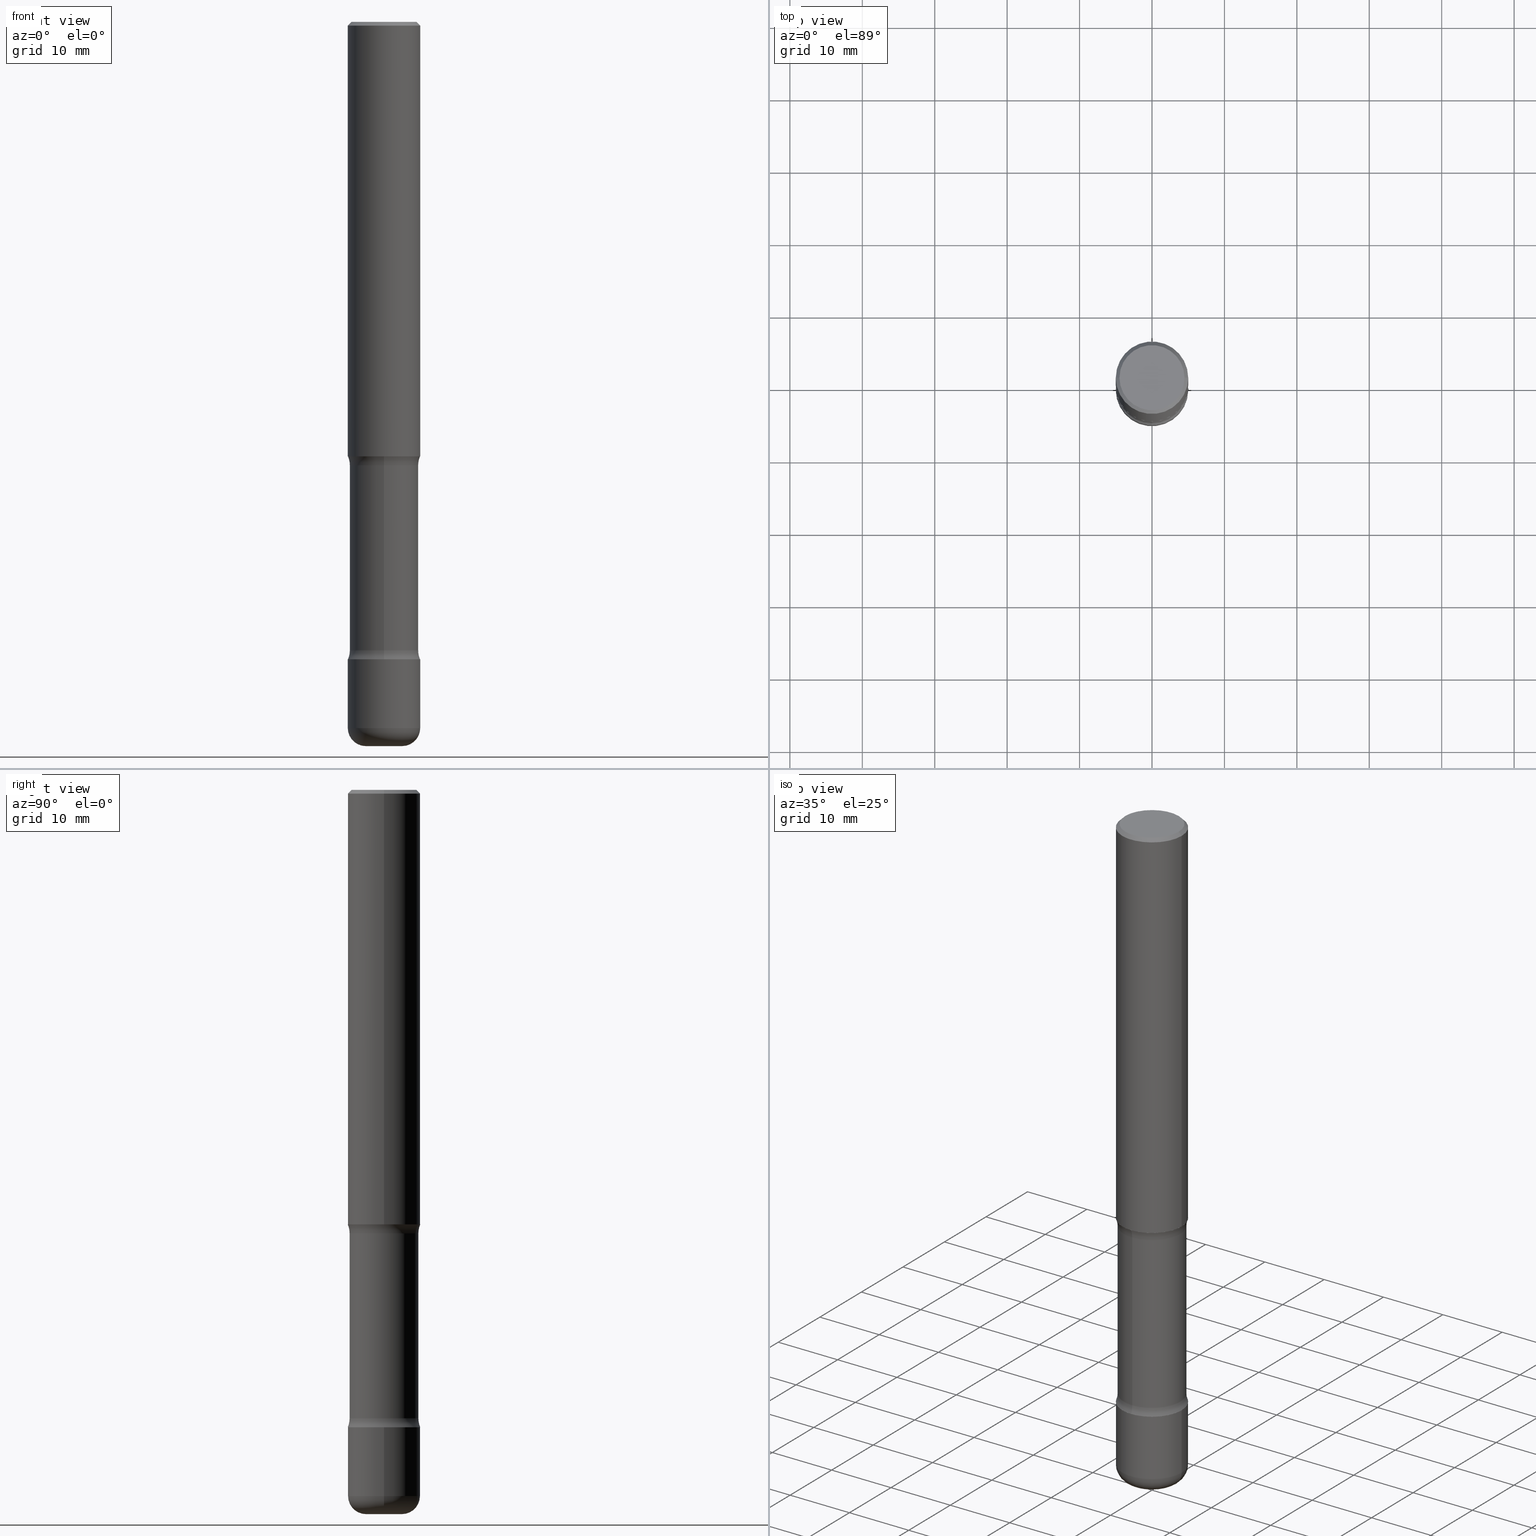
[diagram: canonical four-view strip — front | top / right | iso, engineering-drawing reading convention]
A machine part, canonical four-view strip (front | top / right | iso — engineering-drawing reading convention). The complete STEP part file that produces these views, byte-faithful:
ISO-10303-21;
HEADER;
FILE_DESCRIPTION (( 'STEP AP203' ),
    '1' );
FILE_NAME ('45192.STEP',
    '2024-03-02T05:10:40',
    ( '' ),
    ( '' ),
    'SwSTEP 2.0',
    'SolidWorks 2023',
    '' );
FILE_SCHEMA (( 'CONFIG_CONTROL_DESIGN' ));
ENDSEC;

DATA;
#1 = APPROVAL_PERSON_ORGANIZATION ( #38, #67, #330 ) ;
#2 = ORIENTED_EDGE ( 'NONE', *, *, #7, .F. ) ;
#3 = APPLICATION_CONTEXT ( 'configuration controlled 3d designs of mechanical parts and assemblies' ) ;
#4 = ORIENTED_EDGE ( 'NONE', *, *, #212, .F. ) ;
#5 = EDGE_CURVE ( 'NONE', #428, #130, #383, .T. ) ;
#6 = CARTESIAN_POINT ( 'NONE',  ( 1.305814020727415620E-15, 0.1869999999999880924, -3.415963825191532521 ) ) ;
#7 = EDGE_CURVE ( 'NONE', #387, #225, #76, .T. ) ;
#8 = ORIENTED_EDGE ( 'NONE', *, *, #312, .T. ) ;
#9 = DIRECTION ( 'NONE',  ( 2.620889282446383185E-29, -3.240269232523581650E-15, -1.000000000000000000 ) ) ;
#10 = AXIS2_PLACEMENT_3D ( 'NONE', #240, #72, #417 ) ;
#11 = CC_DESIGN_APPROVAL ( #115, ( #23 ) ) ;
#12 = FACE_OUTER_BOUND ( 'NONE', #211, .T. ) ;
#13 = ORIENTED_EDGE ( 'NONE', *, *, #236, .F. ) ;
#14 = DIRECTION ( 'NONE',  ( 6.982962677686265133E-15, 1.000000000000000000, -2.775563112689110384E-15 ) ) ;
#15 = CARTESIAN_POINT ( 'NONE',  ( 1.305814020727390377E-15, 0.1869999999999915341, -2.410836174808471455 ) ) ;
#16 = EDGE_CURVE ( 'NONE', #256, #487, #436, .T. ) ;
#17 = ORIENTED_EDGE ( 'NONE', *, *, #312, .F. ) ;
#18 = EDGE_CURVE ( 'NONE', #477, #123, #303, .T. ) ;
#19 = DIRECTION ( 'NONE',  ( 1.000000000000000000, -6.982962677686266711E-15, 4.883557194083112340E-29 ) ) ;
#20 = CARTESIAN_POINT ( 'NONE',  ( 1.374596203102626805E-15, 0.1968499999999879790, -3.464600000000001678 ) ) ;
#21 = DIRECTION ( 'NONE',  ( 2.620889282446383185E-29, -3.240269232523581650E-15, -1.000000000000000000 ) ) ;
#22 = CARTESIAN_POINT ( 'NONE',  ( -1.316701078222246809E-15, -0.1870000000000088813, -2.410836174808470567 ) ) ;
#23 = PRODUCT_DEFINITION_FORMATION_WITH_SPECIFIED_SOURCE ( 'ANY', '', #317, .NOT_KNOWN. ) ;
#24 = DIRECTION ( 'NONE',  ( -1.000000000000000000, 6.982962677686265922E-15, -4.883557194083112340E-29 ) ) ;
#25 = DIRECTION ( 'NONE',  ( 6.982962677686265922E-15, 1.000000000000000000, -3.240269232523581650E-15 ) ) ;
#26 = CARTESIAN_POINT ( 'NONE',  ( 8.472571225909027026E-29, -1.209658624655596689E-14, -3.464600000000001234 ) ) ;
#27 = DIRECTION ( 'NONE',  ( 6.982962677686266711E-15, 1.000000000000000000, -2.921762560068729017E-15 ) ) ;
#28 = DIRECTION ( 'NONE',  ( -2.445468806185136597E-29, 3.491481338843145583E-15, 1.000000000000000000 ) ) ;
#29 = PERSON_AND_ORGANIZATION ( #458, #42 ) ;
#30 = AXIS2_PLACEMENT_3D ( 'NONE', #200, #147, #420 ) ;
#31 = APPROVAL_PERSON_ORGANIZATION ( #255, #400, #549 ) ;
#32 = PERSON_AND_ORGANIZATION_ROLE ( 'creator' ) ;
#33 = EDGE_LOOP ( 'NONE', ( #310, #305, #434, #50 ) ) ;
#34 = EDGE_CURVE ( 'NONE', #428, #235, #112, .T. ) ;
#35 = MANIFOLD_SOLID_BREP ( 'Body-Move/Copy2[2]', #174 ) ;
#36 = APPLICATION_CONTEXT ( 'configuration controlled 3d designs of mechanical parts and assemblies' ) ;
#37 = ORIENTED_EDGE ( 'NONE', *, *, #517, .F. ) ;
#38 = PERSON_AND_ORGANIZATION ( #458, #42 ) ;
#39 = CARTESIAN_POINT ( 'NONE',  ( 8.353632977562746871E-29, -1.192677394981948142E-14, -3.415963825191531633 ) ) ;
#40 = EDGE_LOOP ( 'NONE', ( #518, #357 ) ) ;
#41 = AXIS2_PLACEMENT_3D ( 'NONE', #153, #495, #449 ) ;
#42 = ORGANIZATION ( 'UNSPECIFIED', 'UNSPECIFIED', '' ) ;
#43 = ADVANCED_BREP_SHAPE_REPRESENTATION ( '45192', ( #46, #35, #409, #216 ), #437 ) ;
#44 = VERTEX_POINT ( 'NONE', #527 ) ;
#45 = ORIENTED_EDGE ( 'NONE', *, *, #85, .F. ) ;
#46 = MANIFOLD_SOLID_BREP ( 'Body-Move/Copy2[1]', #352 ) ;
#47 = CARTESIAN_POINT ( 'NONE',  ( 0.1968499999999999139, -1.420318657638188530E-15, -0.02000000000000006981 ) ) ;
#48 = AXIS2_PLACEMENT_3D ( 'NONE', #237, #116, #245 ) ;
#49 = TOROIDAL_SURFACE ( 'NONE', #405, 0.09845000000000023177, 0.09840000000000009850 ) ;
#50 = ORIENTED_EDGE ( 'NONE', *, *, #304, .F. ) ;
#51 = ADVANCED_FACE ( 'NONE', ( #201 ), #422, .T. ) ;
#52 = CYLINDRICAL_SURFACE ( 'NONE', #232, 0.1968500000000000250 ) ;
#53 = ORIENTED_EDGE ( 'NONE', *, *, #158, .T. ) ;
#54 = DIRECTION ( 'NONE',  ( -2.445468806185136597E-29, 3.491481338843145583E-15, 1.000000000000000000 ) ) ;
#55 = VERTEX_POINT ( 'NONE', #459 ) ;
#56 = DIRECTION ( 'NONE',  ( -2.445468806185136597E-29, 3.491481338843145583E-15, 1.000000000000000000 ) ) ;
#57 = AXIS2_PLACEMENT_3D ( 'NONE', #146, #486, #65 ) ;
#58 = ADVANCED_FACE ( 'NONE', ( #143 ), #247, .F. ) ;
#59 = AXIS2_PLACEMENT_3D ( 'NONE', #285, #456, #14 ) ;
#60 = FACE_OUTER_BOUND ( 'NONE', #350, .T. ) ;
#61 = VERTEX_POINT ( 'NONE', #66 ) ;
#62 = DIRECTION ( 'NONE',  ( 7.105427357601001859E-15, 1.000000000000000000, -3.491481338843145583E-15 ) ) ;
#63 = DIRECTION ( 'NONE',  ( 1.000000000000000000, -6.982962677686266711E-15, 4.876176775795935793E-29 ) ) ;
#64 = CARTESIAN_POINT ( 'NONE',  ( 9.387176559422264284E-29, -1.340240026728329889E-14, -3.838600000000000012 ) ) ;
#65 = DIRECTION ( 'NONE',  ( -1.000000000000000000, 6.982962677686265922E-15, -4.876176775795935793E-29 ) ) ;
#66 = CARTESIAN_POINT ( 'NONE',  ( 0.1968500000000002470, -1.477699647038584208E-14, -3.838600000000000012 ) ) ;
#67 = APPROVAL ( #427, 'UNSPECIFIED' ) ;
#68 = CLOSED_SHELL ( 'NONE', ( #540, #378, #492, #452, #233, #491, #528, #97 ) ) ;
#69 = CARTESIAN_POINT ( 'NONE',  ( 0.1968500000000000250, -1.374596203102541608E-15, 9.598753983154300858E-30 ) ) ;
#70 = CIRCLE ( 'NONE', #166, 0.1250000000000000000 ) ;
#71 = DIRECTION ( 'NONE',  ( -6.982962677686265133E-15, -1.000000000000000000, 0.000000000000000000 ) ) ;
#72 = DIRECTION ( 'NONE',  ( -2.445468806185136597E-29, 3.491481338843145583E-15, 1.000000000000000000 ) ) ;
#73 = MECHANICAL_CONTEXT ( 'NONE', #3, 'mechanical' ) ;
#74 = EDGE_CURVE ( 'NONE', #61, #252, #531, .T. ) ;
#75 = DATE_TIME_ROLE ( 'classification_date' ) ;
#76 = CIRCLE ( 'NONE', #101, 0.1968500000000001082 ) ;
#77 = TOROIDAL_SURFACE ( 'NONE', #474, 0.3120000000000002771, 0.1250000000000000278 ) ;
#78 = PERSON_AND_ORGANIZATION_ROLE ( 'classification_officer' ) ;
#79 = DATE_AND_TIME ( #118, #114 ) ;
#80 = ORIENTED_EDGE ( 'NONE', *, *, #159, .F. ) ;
#81 = APPROVAL_DATE_TIME ( #209, #115 ) ;
#82 = ORIENTED_EDGE ( 'NONE', *, *, #548, .F. ) ;
#83 = VECTOR ( 'NONE', #363, 39.37007874015748143 ) ;
#84 = TOROIDAL_SURFACE ( 'NONE', #482, 0.3120000000000002771, 0.1250000000000000278 ) ;
#85 = EDGE_CURVE ( 'NONE', #168, #220, #184, .T. ) ;
#86 = CC_DESIGN_PERSON_AND_ORGANIZATION_ASSIGNMENT ( #248, #467, ( #317 ) ) ;
#87 = ORIENTED_EDGE ( 'NONE', *, *, #548, .T. ) ;
#88 = LINE ( 'NONE', #293, #250 ) ;
#89 = ORIENTED_EDGE ( 'NONE', *, *, #149, .F. ) ;
#90 = CARTESIAN_POINT ( 'NONE',  ( 5.704860736508115224E-29, -8.690574314718193977E-15, -2.410836174808470567 ) ) ;
#91 = AXIS2_PLACEMENT_3D ( 'NONE', #152, #142, #314 ) ;
#92 = ORIENTED_EDGE ( 'NONE', *, *, #132, .T. ) ;
#93 = DIRECTION ( 'NONE',  ( -2.445468806185136597E-29, 3.491481338843145583E-15, 1.000000000000000000 ) ) ;
#94 = DIRECTION ( 'NONE',  ( 6.982962677686266711E-15, 1.000000000000000000, -2.921762560068729806E-15 ) ) ;
#95 = DIRECTION ( 'NONE',  ( -2.445468806185136877E-29, 3.491481338843145188E-15, 1.000000000000000000 ) ) ;
#96 = ORIENTED_EDGE ( 'NONE', *, *, #355, .F. ) ;
#97 = ADVANCED_FACE ( 'NONE', ( #282 ), #151, .T. ) ;
#98 = DIRECTION ( 'NONE',  ( -2.445468806185136597E-29, 3.491481338843145583E-15, 1.000000000000000000 ) ) ;
#99 = ORIENTED_EDGE ( 'NONE', *, *, #501, .T. ) ;
#100 = LINE ( 'NONE', #362, #328 ) ;
#101 = AXIS2_PLACEMENT_3D ( 'NONE', #272, #141, #444 ) ;
#102 = AXIS2_PLACEMENT_3D ( 'NONE', #277, #418, #319 ) ;
#103 = DIRECTION ( 'NONE',  ( -1.000000000000000000, 6.982962677686265922E-15, -4.876176775795935793E-29 ) ) ;
#104 = DIRECTION ( 'NONE',  ( -1.000000000000000000, 6.982962677686265922E-15, -4.883557194083112340E-29 ) ) ;
#105 = CYLINDRICAL_SURFACE ( 'NONE', #155, 0.1968500000000000250 ) ;
#106 = CC_DESIGN_PERSON_AND_ORGANIZATION_ASSIGNMENT ( #376, #384, ( #23 ) ) ;
#107 = CARTESIAN_POINT ( 'NONE',  ( 8.472571225909027026E-29, -1.209658624655596689E-14, -3.464600000000001234 ) ) ;
#108 = CARTESIAN_POINT ( 'NONE',  ( -0.09845000000000021789, -1.252506479980459281E-14, -3.937000000000000277 ) ) ;
#109 = DIRECTION ( 'NONE',  ( 1.000000000000000000, -6.982962677686269866E-15, 0.000000000000000000 ) ) ;
#110 = DIRECTION ( 'NONE',  ( 2.620889282446383185E-29, -3.240269232523581650E-15, -1.000000000000000000 ) ) ;
#111 = CARTESIAN_POINT ( 'NONE',  ( 9.710679322936699330E-29, -1.362728943200010467E-14, -3.937000000000001165 ) ) ;
#112 = CIRCLE ( 'NONE', #120, 0.1250000000000000278 ) ;
#113 = CARTESIAN_POINT ( 'NONE',  ( 2.178684355438173716E-15, 0.3119999999999915619, -2.410836174808471899 ) ) ;
#114 = LOCAL_TIME ( 0, 10, 40.00000000000000000, #460 ) ;
#115 = APPROVAL ( #381, 'UNSPECIFIED' ) ;
#116 = DIRECTION ( 'NONE',  ( -2.445468806185136597E-29, 3.491481338843145583E-15, 1.000000000000000000 ) ) ;
#117 = DIRECTION ( 'NONE',  ( 2.620889282446383185E-29, -3.240269232523581650E-15, -1.000000000000000000 ) ) ;
#118 = CALENDAR_DATE ( 2024, 2, 3 ) ;
#119 = ORIENTED_EDGE ( 'NONE', *, *, #194, .T. ) ;
#120 = AXIS2_PLACEMENT_3D ( 'NONE', #113, #24, #360 ) ;
#121 = ORIENTED_EDGE ( 'NONE', *, *, #238, .F. ) ;
#122 = CARTESIAN_POINT ( 'NONE',  ( 8.345101196614320923E-29, -1.193899194573644426E-14, -3.415963825191531633 ) ) ;
#123 = VERTEX_POINT ( 'NONE', #284 ) ;
#124 = DIRECTION ( 'NONE',  ( 6.982962677686266711E-15, 1.000000000000000000, -2.921762560068729806E-15 ) ) ;
#125 = ORIENTED_EDGE ( 'NONE', *, *, #132, .F. ) ;
#126 = COORDINATED_UNIVERSAL_TIME_OFFSET ( 5, 0, .BEHIND. ) ;
#127 = ORIENTED_EDGE ( 'NONE', *, *, #170, .F. ) ;
#128 = AXIS2_PLACEMENT_3D ( 'NONE', #186, #110, #94 ) ;
#129 = LOCAL_TIME ( 0, 10, 40.00000000000000000, #205 ) ;
#130 = VERTEX_POINT ( 'NONE', #22 ) ;
#131 = CARTESIAN_POINT ( 'NONE',  ( 0.1968499999999999139, -1.420318657638188530E-15, -0.02000000000000006981 ) ) ;
#132 = EDGE_CURVE ( 'NONE', #387, #487, #455, .T. ) ;
#133 = ORIENTED_EDGE ( 'NONE', *, *, #158, .F. ) ;
#134 = CARTESIAN_POINT ( 'NONE',  ( 0.1968500000000001082, -9.622173421717824390E-15, -2.362200000000000966 ) ) ;
#135 = ORIENTED_EDGE ( 'NONE', *, *, #313, .T. ) ;
#136 = FACE_OUTER_BOUND ( 'NONE', #215, .T. ) ;
#137 = AXIS2_PLACEMENT_3D ( 'NONE', #483, #397, #520 ) ;
#138 = EDGE_CURVE ( 'NONE', #187, #551, #144, .T. ) ;
#139 = ORIENTED_EDGE ( 'NONE', *, *, #511, .F. ) ;
#140 = PLANE ( 'NONE',  #289 ) ;
#141 = DIRECTION ( 'NONE',  ( -2.445468806185136597E-29, 3.491481338843145583E-15, 1.000000000000000000 ) ) ;
#142 = DIRECTION ( 'NONE',  ( 2.620889282446383185E-29, -3.240269232523582044E-15, -1.000000000000000000 ) ) ;
#143 = FACE_OUTER_BOUND ( 'NONE', #173, .T. ) ;
#144 = CIRCLE ( 'NONE', #391, 0.1968500000000001360 ) ;
#145 = AXIS2_PLACEMENT_3D ( 'NONE', #264, #230, #443 ) ;
#146 = CARTESIAN_POINT ( 'NONE',  ( 4.014228812657202815E-28, 2.995250643441362579E-14, -3.937000000000000721 ) ) ;
#147 = DIRECTION ( 'NONE',  ( -2.445468806185136597E-29, 3.491481338843145583E-15, 1.000000000000000000 ) ) ;
#148 = DIRECTION ( 'NONE',  ( -2.445468806185136877E-29, 3.491481338843145188E-15, 1.000000000000000000 ) ) ;
#149 = EDGE_CURVE ( 'NONE', #187, #475, #288, .T. ) ;
#150 = DIRECTION ( 'NONE',  ( -6.982962677686266711E-15, -1.000000000000000000, 3.491481338843145583E-15 ) ) ;
#151 = CYLINDRICAL_SURFACE ( 'NONE', #541, 0.1870000000000001106 ) ;
#152 = CARTESIAN_POINT ( 'NONE',  ( 5.776686413970530874E-29, -8.247577218615281204E-15, -2.362200000000000966 ) ) ;
#153 = CARTESIAN_POINT ( 'NONE',  ( 5.776686413970530874E-29, -8.247577218615281204E-15, -2.362200000000000966 ) ) ;
#154 = FACE_OUTER_BOUND ( 'NONE', #308, .T. ) ;
#155 = AXIS2_PLACEMENT_3D ( 'NONE', #429, #344, #244 ) ;
#156 = CARTESIAN_POINT ( 'NONE',  ( 4.890937612370289799E-31, -6.982962677686315028E-17, -0.02000000000000006981 ) ) ;
#157 = DIRECTION ( 'NONE',  ( 6.860497997771529985E-15, 1.000000000000000000, 0.000000000000000000 ) ) ;
#158 = EDGE_CURVE ( 'NONE', #55, #558, #203, .T. ) ;
#159 = EDGE_CURVE ( 'NONE', #252, #61, #431, .T. ) ;
#160 = PERSON_AND_ORGANIZATION_ROLE ( 'design_supplier' ) ;
#161 = CARTESIAN_POINT ( 'NONE',  ( 0.000000000000000000, 0.000000000000000000, 0.000000000000000000 ) ) ;
#162 = EDGE_LOOP ( 'NONE', ( #380, #298, #396, #466 ) ) ;
#163 = APPLICATION_PROTOCOL_DEFINITION ( 'international standard', 'config_control_design', 1994, #36 ) ;
#164 = CIRCLE ( 'NONE', #297, 0.09840000000000008462 ) ;
#165 = VERTEX_POINT ( 'NONE', #451 ) ;
#166 = AXIS2_PLACEMENT_3D ( 'NONE', #470, #349, #395 ) ;
#167 = DATE_AND_TIME ( #251, #178 ) ;
#168 = VERTEX_POINT ( 'NONE', #108 ) ;
#169 = DIRECTION ( 'NONE',  ( 0.000000000000000000, 0.000000000000000000, 1.000000000000000000 ) ) ;
#170 = EDGE_CURVE ( 'NONE', #551, #187, #454, .T. ) ;
#171 = ORIENTED_EDGE ( 'NONE', *, *, #138, .F. ) ;
#172 = CARTESIAN_POINT ( 'NONE',  ( -0.1768499999999998407, 1.269851762937246464E-15, 4.268512490091652920E-18 ) ) ;
#173 = EDGE_LOOP ( 'NONE', ( #2, #524 ) ) ;
#174 = CLOSED_SHELL ( 'NONE', ( #332, #213, #512, #302, #58, #218 ) ) ;
#175 = DIRECTION ( 'NONE',  ( -6.982962677686265922E-15, -1.000000000000000000, 3.240269232523582044E-15 ) ) ;
#176 = CC_DESIGN_SECURITY_CLASSIFICATION ( #447, ( #23 ) ) ;
#177 = EDGE_CURVE ( 'NONE', #123, #487, #497, .T. ) ;
#178 = LOCAL_TIME ( 0, 10, 40.00000000000000000, #554 ) ;
#179 = DIRECTION ( 'NONE',  ( 0.7071067811865472397, -7.319954787623254468E-15, -0.7071067811865477948 ) ) ;
#180 = FACE_OUTER_BOUND ( 'NONE', #382, .T. ) ;
#181 = EDGE_LOOP ( 'NONE', ( #559, #221, #17, #121 ) ) ;
#182 = ORIENTED_EDGE ( 'NONE', *, *, #16, .F. ) ;
#183 = CYLINDRICAL_SURFACE ( 'NONE', #145, 0.1968500000000001915 ) ;
#184 = CIRCLE ( 'NONE', #10, 0.09845000000000021789 ) ;
#185 = AXIS2_PLACEMENT_3D ( 'NONE', #122, #507, #124 ) ;
#186 = CARTESIAN_POINT ( 'NONE',  ( 8.345101196614320923E-29, -1.193899194573644426E-14, -3.415963825191531633 ) ) ;
#187 = VERTEX_POINT ( 'NONE', #20 ) ;
#188 = DIRECTION ( 'NONE',  ( -2.445468806185136597E-29, 3.491481338843145583E-15, 1.000000000000000000 ) ) ;
#189 = UNCERTAINTY_MEASURE_WITH_UNIT (LENGTH_MEASURE( 1.000000000000000082E-05 ), #347, 'distance_accuracy_value', 'NONE');
#190 = DIRECTION ( 'NONE',  ( 2.620889282446383185E-29, -3.240269232523582044E-15, -1.000000000000000000 ) ) ;
#191 = ORIENTED_EDGE ( 'NONE', *, *, #435, .F. ) ;
#192 = DIRECTION ( 'NONE',  ( 1.000000000000000000, -6.982962677686276177E-15, 0.000000000000000000 ) ) ;
#193 = DIRECTION ( 'NONE',  ( 1.000000000000000000, -6.982962677686272233E-15, 0.000000000000000000 ) ) ;
#194 = EDGE_CURVE ( 'NONE', #558, #55, #414, .T. ) ;
#195 = CONICAL_SURFACE ( 'NONE', #503, 0.1968499999999999139, 0.7853981633974479459 ) ;
#196 = CIRCLE ( 'NONE', #415, 0.1768499999999998407 ) ;
#197 = PLANE ( 'NONE',  #91 ) ;
#198 = DIRECTION ( 'NONE',  ( 1.000000000000000000, -6.982962677686263555E-15, 0.000000000000000000 ) ) ;
#199 = CARTESIAN_POINT ( 'NONE',  ( 0.09845000000000021789, -1.443343470664367755E-14, -3.937000000000000277 ) ) ;
#200 = CARTESIAN_POINT ( 'NONE',  ( 9.387176559422264284E-29, -1.340240026728329889E-14, -3.838600000000000012 ) ) ;
#201 = FACE_OUTER_BOUND ( 'NONE', #266, .T. ) ;
#202 = DIRECTION ( 'NONE',  ( 2.620889282446383185E-29, -3.240269232523581650E-15, -1.000000000000000000 ) ) ;
#203 = CIRCLE ( 'NONE', #473, 0.1968500000000001360 ) ;
#204 = LOCAL_TIME ( 0, 10, 40.00000000000000000, #500 ) ;
#205 = COORDINATED_UNIVERSAL_TIME_OFFSET ( 5, 0, .BEHIND. ) ;
#206 = DIRECTION ( 'NONE',  ( 1.000000000000000000, -6.860497997771530774E-15, 4.843875340643255873E-29 ) ) ;
#207 = DATE_TIME_ROLE ( 'creation_date' ) ;
#208 = EDGE_LOOP ( 'NONE', ( #393, #135, #191, #125 ) ) ;
#209 = DATE_AND_TIME ( #341, #129 ) ;
#210 = CARTESIAN_POINT ( 'NONE',  ( 9.710679322936699330E-29, -1.362728943200010467E-14, -3.937000000000001165 ) ) ;
#211 = EDGE_LOOP ( 'NONE', ( #4, #45 ) ) ;
#212 = EDGE_CURVE ( 'NONE', #220, #168, #480, .T. ) ;
#213 = ADVANCED_FACE ( 'NONE', ( #537 ), #195, .T. ) ;
#214 = CARTESIAN_POINT ( 'NONE',  ( 0.000000000000000000, 0.000000000000000000, 0.000000000000000000 ) ) ;
#215 = EDGE_LOOP ( 'NONE', ( #82, #408, #217, #472 ) ) ;
#216 = AXIS2_PLACEMENT_3D ( 'NONE', #161, #169, #291 ) ;
#217 = ORIENTED_EDGE ( 'NONE', *, *, #34, .T. ) ;
#218 = ADVANCED_FACE ( 'NONE', ( #249 ), #105, .T. ) ;
#219 = ADVANCED_FACE ( 'NONE', ( #386 ), #346, .T. ) ;
#220 = VERTEX_POINT ( 'NONE', #199 ) ;
#221 = ORIENTED_EDGE ( 'NONE', *, *, #505, .T. ) ;
#222 = AXIS2_PLACEMENT_3D ( 'NONE', #416, #243, #280 ) ;
#223 = FACE_OUTER_BOUND ( 'NONE', #521, .T. ) ;
#224 = CIRCLE ( 'NONE', #504, 0.1968500000000004690 ) ;
#225 = VERTEX_POINT ( 'NONE', #370 ) ;
#226 = DIRECTION ( 'NONE',  ( 1.000000000000000000, -6.982962677686265922E-15, 4.876176775795935793E-29 ) ) ;
#227 = EDGE_LOOP ( 'NONE', ( #119, #53 ) ) ;
#228 = CARTESIAN_POINT ( 'NONE',  ( 4.890937612370289799E-31, -6.982962677686315028E-17, -0.02000000000000006981 ) ) ;
#229 = DIRECTION ( 'NONE',  ( 2.620889282446383185E-29, -3.240269232523581650E-15, -1.000000000000000000 ) ) ;
#230 = DIRECTION ( 'NONE',  ( -2.445468806185136597E-29, 3.491481338843145583E-15, 1.000000000000000000 ) ) ;
#231 = AXIS2_PLACEMENT_3D ( 'NONE', #214, #56, #63 ) ;
#232 = AXIS2_PLACEMENT_3D ( 'NONE', #267, #295, #226 ) ;
#233 = ADVANCED_FACE ( 'NONE', ( #60 ), #197, .F. ) ;
#234 = DIRECTION ( 'NONE',  ( 1.000000000000000000, -6.982962677686266711E-15, 4.875932113059882493E-29 ) ) ;
#235 = VERTEX_POINT ( 'NONE', #536 ) ;
#236 = EDGE_CURVE ( 'NONE', #220, #61, #164, .T. ) ;
#237 = CARTESIAN_POINT ( 'NONE',  ( 4.890937612370289799E-31, -6.982962677686315028E-17, -0.02000000000000006981 ) ) ;
#238 = EDGE_CURVE ( 'NONE', #428, #475, #526, .T. ) ;
#239 = DIRECTION ( 'NONE',  ( 2.438088387897960049E-29, -3.491481338843145188E-15, -1.000000000000000000 ) ) ;
#240 = CARTESIAN_POINT ( 'NONE',  ( 9.627810689950883669E-29, -1.374596203102546341E-14, -3.937000000000000277 ) ) ;
#241 = AXIS2_PLACEMENT_3D ( 'NONE', #107, #323, #103 ) ;
#242 = TOROIDAL_SURFACE ( 'NONE', #375, 0.3120000000000001106, 0.1250000000000000000 ) ;
#243 = DIRECTION ( 'NONE',  ( 2.620889282446383185E-29, -3.240269232523581650E-15, -1.000000000000000000 ) ) ;
#244 = DIRECTION ( 'NONE',  ( 1.000000000000000000, -6.982962677686265922E-15, 4.876176775795935793E-29 ) ) ;
#245 = DIRECTION ( 'NONE',  ( 1.000000000000000000, -6.982962677686266711E-15, 0.000000000000000000 ) ) ;
#246 = CARTESIAN_POINT ( 'NONE',  ( -1.282913125583180022E-15, -0.1870000000000137386, -3.937000000000000721 ) ) ;
#247 = PLANE ( 'NONE',  #41 ) ;
#248 = PERSON_AND_ORGANIZATION ( #458, #42 ) ;
#249 = FACE_OUTER_BOUND ( 'NONE', #485, .T. ) ;
#250 = VECTOR ( 'NONE', #95, 39.37007874015748143 ) ;
#251 = CALENDAR_DATE ( 2024, 2, 3 ) ;
#252 = VERTEX_POINT ( 'NONE', #407 ) ;
#253 =( LENGTH_UNIT ( ) NAMED_UNIT ( * ) SI_UNIT ( $, .METRE. ) );
#254 = ORIENTED_EDGE ( 'NONE', *, *, #212, .T. ) ;
#255 = PERSON_AND_ORGANIZATION ( #458, #42 ) ;
#256 = VERTEX_POINT ( 'NONE', #534 ) ;
#257 = DATE_AND_TIME ( #287, #204 ) ;
#258 = VECTOR ( 'NONE', #190, 39.37007874015748143 ) ;
#259 = ORIENTED_EDGE ( 'NONE', *, *, #311, .T. ) ;
#260 = CIRCLE ( 'NONE', #59, 0.1968500000000004690 ) ;
#261 = ADVANCED_FACE ( 'NONE', ( #523 ), #271, .F. ) ;
#262 = EDGE_CURVE ( 'NONE', #256, #477, #552, .T. ) ;
#263 = ORIENTED_EDGE ( 'NONE', *, *, #469, .F. ) ;
#264 = CARTESIAN_POINT ( 'NONE',  ( 0.000000000000000000, 0.000000000000000000, 0.000000000000000000 ) ) ;
#265 = LENGTH_MEASURE_WITH_UNIT ( LENGTH_MEASURE( 0.02539999999999999897 ), #253 );
#266 = EDGE_LOOP ( 'NONE', ( #254, #385, #478, #13 ) ) ;
#267 = CARTESIAN_POINT ( 'NONE',  ( 0.000000000000000000, 0.000000000000000000, 0.000000000000000000 ) ) ;
#268 = ORIENTED_EDGE ( 'NONE', *, *, #481, .F. ) ;
#269 = AXIS2_PLACEMENT_3D ( 'NONE', #421, #206, #157 ) ;
#270 = ORIENTED_EDGE ( 'NONE', *, *, #194, .F. ) ;
#271 = PLANE ( 'NONE',  #241 ) ;
#272 = CARTESIAN_POINT ( 'NONE',  ( 5.776686413970530874E-29, -8.247577218615281204E-15, -2.362200000000000966 ) ) ;
#273 = AXIS2_PLACEMENT_3D ( 'NONE', #538, #413, #198 ) ;
#274 = CARTESIAN_POINT ( 'NONE',  ( 9.387176559422264284E-29, -1.340240026728329889E-14, -3.838600000000000012 ) ) ;
#275 = LOCAL_TIME ( 0, 10, 40.00000000000000000, #126 ) ;
#276 = CARTESIAN_POINT ( 'NONE',  ( -1.043851414335219820E-46, 1.490343170380447200E-32, 4.268512490100411279E-18 ) ) ;
#277 = CARTESIAN_POINT ( 'NONE',  ( 5.710772910234841729E-29, -8.682107745441492905E-15, -2.410836174808471011 ) ) ;
#278 = DIRECTION ( 'NONE',  ( -2.445468806185136597E-29, 3.491481338843145583E-15, 1.000000000000000000 ) ) ;
#279 = FACE_OUTER_BOUND ( 'NONE', #338, .T. ) ;
#280 = DIRECTION ( 'NONE',  ( 6.982962677686265922E-15, 1.000000000000000000, -2.775563112689114723E-15 ) ) ;
#281 = PRODUCT_DEFINITION_SHAPE ( 'NONE', 'NONE',  #556 ) ;
#282 = FACE_OUTER_BOUND ( 'NONE', #33, .T. ) ;
#283 = CIRCLE ( 'NONE', #463, 0.1968499999999999139 ) ;
#284 = CARTESIAN_POINT ( 'NONE',  ( -0.1968499999999999139, 1.304766576325677916E-15, -0.02000000000000006981 ) ) ;
#285 = CARTESIAN_POINT ( 'NONE',  ( 5.583302880940132263E-29, -8.524513444621968702E-15, -2.362200000000000966 ) ) ;
#286 = DIRECTION ( 'NONE',  ( 2.445468806185136597E-29, -3.491481338843145583E-15, -1.000000000000000000 ) ) ;
#287 = CALENDAR_DATE ( 2024, 2, 3 ) ;
#288 = CIRCLE ( 'NONE', #327, 0.1250000000000000000 ) ;
#289 = AXIS2_PLACEMENT_3D ( 'NONE', #390, #300, #175 ) ;
#290 = ADVANCED_FACE ( 'NONE', ( #12 ), #530, .T. ) ;
#291 = DIRECTION ( 'NONE',  ( 1.000000000000000000, 0.000000000000000000, 0.000000000000000000 ) ) ;
#292 = ORIENTED_EDGE ( 'NONE', *, *, #34, .F. ) ;
#293 = CARTESIAN_POINT ( 'NONE',  ( -0.1968500000000000250, 1.398703375343757393E-15, -9.682923725166783677E-30 ) ) ;
#294 = EDGE_LOOP ( 'NONE', ( #484, #506, #270, #514 ) ) ;
#295 = DIRECTION ( 'NONE',  ( -2.445468806185136597E-29, 3.491481338843145583E-15, 1.000000000000000000 ) ) ;
#296 = APPROVAL_DATE_TIME ( #79, #67 ) ;
#297 = AXIS2_PLACEMENT_3D ( 'NONE', #367, #150, #192 ) ;
#298 = ORIENTED_EDGE ( 'NONE', *, *, #16, .T. ) ;
#299 = CONICAL_SURFACE ( 'NONE', #488, 0.1968499999999999139, 0.7853981633974479459 ) ;
#300 = DIRECTION ( 'NONE',  ( -2.620889282446383185E-29, 3.240269232523582044E-15, 1.000000000000000000 ) ) ;
#301 = ORIENTED_EDGE ( 'NONE', *, *, #394, .F. ) ;
#302 = ADVANCED_FACE ( 'NONE', ( #279 ), #450, .F. ) ;
#303 = LINE ( 'NONE', #532, #364 ) ;
#304 = EDGE_CURVE ( 'NONE', #165, #475, #374, .T. ) ;
#305 = ORIENTED_EDGE ( 'NONE', *, *, #394, .T. ) ;
#306 = AXIS2_PLACEMENT_3D ( 'NONE', #494, #239, #412 ) ;
#307 = CIRCLE ( 'NONE', #269, 0.1250000000000000278 ) ;
#308 = EDGE_LOOP ( 'NONE', ( #182, #555, #461, #468 ) ) ;
#309 = LINE ( 'NONE', #358, #354 ) ;
#310 = ORIENTED_EDGE ( 'NONE', *, *, #505, .F. ) ;
#311 = EDGE_CURVE ( 'NONE', #225, #387, #445, .T. ) ;
#312 = EDGE_CURVE ( 'NONE', #475, #165, #533, .T. ) ;
#313 = EDGE_CURVE ( 'NONE', #225, #123, #88, .T. ) ;
#314 = DIRECTION ( 'NONE',  ( 6.982962677686265922E-15, 1.000000000000000000, -3.240269232523582044E-15 ) ) ;
#315 = DIRECTION ( 'NONE',  ( 6.982962677686266711E-15, 1.000000000000000000, -2.921762560068729017E-15 ) ) ;
#316 = TOROIDAL_SURFACE ( 'NONE', #137, 0.3120000000000001106, 0.1250000000000000000 ) ;
#317 = PRODUCT ( '45192', '45192', '', ( #73 ) ) ;
#318 = DIRECTION ( 'NONE',  ( -0.7071067811865472397, 2.468850131082253905E-15, -0.7071067811865477948 ) ) ;
#319 = DIRECTION ( 'NONE',  ( 6.982962677686266711E-15, 1.000000000000000000, -2.921762560068727439E-15 ) ) ;
#320 = CARTESIAN_POINT ( 'NONE',  ( 1.305814020727429623E-15, 0.1869999999999864826, -3.937000000000001609 ) ) ;
#321 = DIRECTION ( 'NONE',  ( 2.620889282446383185E-29, -3.240269232523581650E-15, -1.000000000000000000 ) ) ;
#322 = CARTESIAN_POINT ( 'NONE',  ( 4.890937612370289799E-31, -6.982962677686315028E-17, -0.02000000000000006981 ) ) ;
#323 = DIRECTION ( 'NONE',  ( 2.438088387897960049E-29, -3.491481338843145188E-15, -1.000000000000000000 ) ) ;
#324 = DIRECTION ( 'NONE',  ( 1.000000000000000000, -6.982962677686263555E-15, 0.000000000000000000 ) ) ;
#325 = DIMENSIONAL_EXPONENTS ( 1.000000000000000000, 0.000000000000000000, 0.000000000000000000, 0.000000000000000000, 0.000000000000000000, 0.000000000000000000, 0.000000000000000000 ) ;
#326 = DIRECTION ( 'NONE',  ( 2.445468806185136597E-29, -3.491481338843145583E-15, -1.000000000000000000 ) ) ;
#327 = AXIS2_PLACEMENT_3D ( 'NONE', #493, #104, #71 ) ;
#328 = VECTOR ( 'NONE', #404, 39.37007874015748143 ) ;
#329 = DIRECTION ( 'NONE',  ( 2.620889282446383185E-29, -3.240269232523581650E-15, -1.000000000000000000 ) ) ;
#330 = APPROVAL_ROLE ( '' ) ;
#331 = CARTESIAN_POINT ( 'NONE',  ( 0.1968500000000001360, -1.347118244965850850E-14, -3.464600000000001234 ) ) ;
#332 = ADVANCED_FACE ( 'NONE', ( #401 ), #52, .T. ) ;
#333 = CARTESIAN_POINT ( 'NONE',  ( -1.350489030861242007E-15, -0.1968500000000122097, -3.464600000000000346 ) ) ;
#334 = ORIENTED_EDGE ( 'NONE', *, *, #355, .T. ) ;
#335 = AXIS2_PLACEMENT_3D ( 'NONE', #410, #28, #193 ) ;
#336 = APPROVAL_PERSON_ORGANIZATION ( #29, #115, #337 ) ;
#337 = APPROVAL_ROLE ( '' ) ;
#338 = EDGE_LOOP ( 'NONE', ( #547, #426 ) ) ;
#339 = CC_DESIGN_PERSON_AND_ORGANIZATION_ASSIGNMENT ( #543, #160, ( #23 ) ) ;
#340 = CALENDAR_DATE ( 2024, 2, 3 ) ;
#341 = CALENDAR_DATE ( 2024, 2, 3 ) ;
#342 = ORIENTED_EDGE ( 'NONE', *, *, #481, .T. ) ;
#343 = FACE_OUTER_BOUND ( 'NONE', #40, .T. ) ;
#344 = DIRECTION ( 'NONE',  ( -2.445468806185136597E-29, 3.491481338843145583E-15, 1.000000000000000000 ) ) ;
#345 = CIRCLE ( 'NONE', #102, 0.1870000000000002216 ) ;
#346 = CYLINDRICAL_SURFACE ( 'NONE', #231, 0.1968500000000001915 ) ;
#347 =( CONVERSION_BASED_UNIT ( 'INCH', #265 ) LENGTH_UNIT ( ) NAMED_UNIT ( #325 ) );
#348 = ORIENTED_EDGE ( 'NONE', *, *, #313, .F. ) ;
#349 = DIRECTION ( 'NONE',  ( 1.000000000000000000, -6.860497997771530774E-15, 4.843875340643255873E-29 ) ) ;
#350 = EDGE_LOOP ( 'NONE', ( #37, #268 ) ) ;
#351 = CARTESIAN_POINT ( 'NONE',  ( 5.710772910234841729E-29, -8.682107745441492905E-15, -2.410836174808471011 ) ) ;
#352 = CLOSED_SHELL ( 'NONE', ( #219, #51, #290, #457, #476, #261 ) ) ;
#353 = CARTESIAN_POINT ( 'NONE',  ( 5.583302880940132263E-29, -8.524513444621968702E-15, -2.362200000000000966 ) ) ;
#354 = VECTOR ( 'NONE', #148, 39.37007874015748143 ) ;
#355 = EDGE_CURVE ( 'NONE', #551, #165, #70, .T. ) ;
#356 = CARTESIAN_POINT ( 'NONE',  ( 5.776686413970530874E-29, -8.247577218615281204E-15, -2.362200000000000966 ) ) ;
#357 = ORIENTED_EDGE ( 'NONE', *, *, #170, .T. ) ;
#358 = CARTESIAN_POINT ( 'NONE',  ( 0.1968500000000001915, -1.374596203102542989E-15, 9.598753983154309266E-30 ) ) ;
#359 = CARTESIAN_POINT ( 'NONE',  ( 5.704860736508115224E-29, -8.690574314718193977E-15, -2.410836174808470567 ) ) ;
#360 = DIRECTION ( 'NONE',  ( -6.982962677686265133E-15, -1.000000000000000000, 0.000000000000000000 ) ) ;
#361 = CARTESIAN_POINT ( 'NONE',  ( -0.09845000000000023177, -1.270287094392747920E-14, -3.838600000000000012 ) ) ;
#362 = CARTESIAN_POINT ( 'NONE',  ( -0.1968500000000001915, 1.398703375343758577E-15, -9.682923725166790684E-30 ) ) ;
#363 = DIRECTION ( 'NONE',  ( -2.445468806185136877E-29, 3.491481338843145188E-15, 1.000000000000000000 ) ) ;
#364 = VECTOR ( 'NONE', #318, 39.37007874015748143 ) ;
#365 = CC_DESIGN_PERSON_AND_ORGANIZATION_ASSIGNMENT ( #508, #78, ( #447 ) ) ;
#366 = CIRCLE ( 'NONE', #542, 0.09840000000000008462 ) ;
#367 = CARTESIAN_POINT ( 'NONE',  ( 0.09845000000000023177, -1.408987294290151145E-14, -3.838600000000000012 ) ) ;
#368 = CARTESIAN_POINT ( 'NONE',  ( 9.627810689950883669E-29, -1.374596203102546341E-14, -3.937000000000000277 ) ) ;
#369 = DIRECTION ( 'NONE',  ( 2.620889282446383185E-29, -3.240269232523582044E-15, -1.000000000000000000 ) ) ;
#370 = CARTESIAN_POINT ( 'NONE',  ( -0.1968500000000001082, -2.760000047352312097E-15, -2.362200000000000966 ) ) ;
#371 = DIRECTION ( 'NONE',  ( 1.000000000000000000, -6.982962677686259611E-15, 0.000000000000000000 ) ) ;
#372 = DIRECTION ( 'NONE',  ( -1.000000000000000000, 7.105427357601012903E-15, 0.000000000000000000 ) ) ;
#373 = CARTESIAN_POINT ( 'NONE',  ( 8.472571225909027026E-29, -1.209658624655596689E-14, -3.464600000000001234 ) ) ;
#374 = CIRCLE ( 'NONE', #128, 0.1870000000000000551 ) ;
#375 = AXIS2_PLACEMENT_3D ( 'NONE', #39, #202, #546 ) ;
#376 = PERSON_AND_ORGANIZATION ( #458, #42 ) ;
#377 = CYLINDRICAL_SURFACE ( 'NONE', #553, 0.1870000000000001106 ) ;
#378 = ADVANCED_FACE ( 'NONE', ( #180 ), #316, .F. ) ;
#379 = APPROVAL_DATE_TIME ( #167, #400 ) ;
#380 = ORIENTED_EDGE ( 'NONE', *, *, #262, .F. ) ;
#381 = APPROVAL_STATUS ( 'not_yet_approved' ) ;
#382 = EDGE_LOOP ( 'NONE', ( #127, #334, #509, #89 ) ) ;
#383 = CIRCLE ( 'NONE', #423, 0.1870000000000002216 ) ;
#384 = PERSON_AND_ORGANIZATION_ROLE ( 'creator' ) ;
#385 = ORIENTED_EDGE ( 'NONE', *, *, #511, .T. ) ;
#386 = FACE_OUTER_BOUND ( 'NONE', #294, .T. ) ;
#387 = VERTEX_POINT ( 'NONE', #134 ) ;
#388 = DESIGN_CONTEXT ( 'detailed design', #36, 'design' ) ;
#389 = ORIENTED_EDGE ( 'NONE', *, *, #85, .T. ) ;
#390 = CARTESIAN_POINT ( 'NONE',  ( 8.472571225909027026E-29, -1.209658624655596689E-14, -3.464600000000001234 ) ) ;
#391 = AXIS2_PLACEMENT_3D ( 'NONE', #26, #321, #453 ) ;
#392 =( NAMED_UNIT ( * ) SI_UNIT ( $, .STERADIAN. ) SOLID_ANGLE_UNIT ( ) );
#393 = ORIENTED_EDGE ( 'NONE', *, *, #7, .T. ) ;
#394 = EDGE_CURVE ( 'NONE', #130, #428, #345, .T. ) ;
#395 = DIRECTION ( 'NONE',  ( 6.860497997771529985E-15, 1.000000000000000000, 0.000000000000000000 ) ) ;
#396 = ORIENTED_EDGE ( 'NONE', *, *, #435, .T. ) ;
#397 = DIRECTION ( 'NONE',  ( 2.620889282446383185E-29, -3.240269232523581650E-15, -1.000000000000000000 ) ) ;
#398 = ORIENTED_EDGE ( 'NONE', *, *, #159, .T. ) ;
#399 = FACE_OUTER_BOUND ( 'NONE', #442, .T. ) ;
#400 = APPROVAL ( #545, 'UNSPECIFIED' ) ;
#401 = FACE_OUTER_BOUND ( 'NONE', #208, .T. ) ;
#402 = ORIENTED_EDGE ( 'NONE', *, *, #149, .T. ) ;
#403 = AXIS2_PLACEMENT_3D ( 'NONE', #368, #535, #371 ) ;
#404 = DIRECTION ( 'NONE',  ( -2.445468806185136877E-29, 3.491481338843145188E-15, 1.000000000000000000 ) ) ;
#405 = AXIS2_PLACEMENT_3D ( 'NONE', #274, #448, #19 ) ;
#406 = CARTESIAN_POINT ( 'NONE',  ( -1.043851414335219820E-46, 1.490343170380447200E-32, 4.268512490100411279E-18 ) ) ;
#407 = CARTESIAN_POINT ( 'NONE',  ( -0.1968500000000002470, -1.200369689193953874E-14, -3.838600000000000012 ) ) ;
#408 = ORIENTED_EDGE ( 'NONE', *, *, #5, .F. ) ;
#409 = MANIFOLD_SOLID_BREP ( 'Body-Move/Copy2[4]', #68 ) ;
#410 = CARTESIAN_POINT ( 'NONE',  ( 9.387176559422264284E-29, -1.340240026728329889E-14, -3.838600000000000012 ) ) ;
#411 = CC_DESIGN_PERSON_AND_ORGANIZATION_ASSIGNMENT ( #425, #32, ( #556 ) ) ;
#412 = DIRECTION ( 'NONE',  ( -1.000000000000000000, 6.982962677686265922E-15, -4.876176775795935793E-29 ) ) ;
#413 = DIRECTION ( 'NONE',  ( -2.445468806185136597E-29, 3.491481338843145583E-15, 1.000000000000000000 ) ) ;
#414 = CIRCLE ( 'NONE', #273, 0.1968500000000001360 ) ;
#415 = AXIS2_PLACEMENT_3D ( 'NONE', #406, #93, #441 ) ;
#416 = CARTESIAN_POINT ( 'NONE',  ( 8.472571225909027026E-29, -1.209658624655596689E-14, -3.464600000000001234 ) ) ;
#417 = DIRECTION ( 'NONE',  ( 1.000000000000000000, -6.982962677686259611E-15, 0.000000000000000000 ) ) ;
#418 = DIRECTION ( 'NONE',  ( 2.620889282446383185E-29, -3.240269232523581650E-15, -1.000000000000000000 ) ) ;
#419 = EDGE_CURVE ( 'NONE', #477, #256, #196, .T. ) ;
#420 = DIRECTION ( 'NONE',  ( 1.000000000000000000, -6.982962677686266711E-15, 4.883557194083112340E-29 ) ) ;
#421 = CARTESIAN_POINT ( 'NONE',  ( -2.140475375304662094E-15, -0.3120000000000089369, -2.410836174808469679 ) ) ;
#422 = TOROIDAL_SURFACE ( 'NONE', #30, 0.09845000000000023177, 0.09840000000000009850 ) ;
#423 = AXIS2_PLACEMENT_3D ( 'NONE', #351, #229, #516 ) ;
#424 = VECTOR ( 'NONE', #369, 39.37007874015748143 ) ;
#425 = PERSON_AND_ORGANIZATION ( #458, #42 ) ;
#426 = ORIENTED_EDGE ( 'NONE', *, *, #262, .T. ) ;
#427 = APPROVAL_STATUS ( 'not_yet_approved' ) ;
#428 = VERTEX_POINT ( 'NONE', #15 ) ;
#429 = CARTESIAN_POINT ( 'NONE',  ( 0.000000000000000000, 0.000000000000000000, 0.000000000000000000 ) ) ;
#430 = DATE_AND_TIME ( #340, #275 ) ;
#431 = CIRCLE ( 'NONE', #462, 0.1968500000000001915 ) ;
#432 = CC_DESIGN_APPROVAL ( #67, ( #556 ) ) ;
#433 = SHAPE_DEFINITION_REPRESENTATION ( #281, #43 ) ;
#434 = ORIENTED_EDGE ( 'NONE', *, *, #238, .T. ) ;
#435 = EDGE_CURVE ( 'NONE', #487, #123, #283, .T. ) ;
#436 = LINE ( 'NONE', #47, #560 ) ;
#437 =( GEOMETRIC_REPRESENTATION_CONTEXT ( 3 ) GLOBAL_UNCERTAINTY_ASSIGNED_CONTEXT ( ( #189 ) ) GLOBAL_UNIT_ASSIGNED_CONTEXT ( ( #347, #557, #392 ) ) REPRESENTATION_CONTEXT ( 'NONE', 'WORKASPACE' ) );
#438 = ORIENTED_EDGE ( 'NONE', *, *, #236, .T. ) ;
#439 = EDGE_LOOP ( 'NONE', ( #96, #171, #402, #8 ) ) ;
#440 = PRODUCT_RELATED_PRODUCT_CATEGORY ( 'detail', '', ( #317 ) ) ;
#441 = DIRECTION ( 'NONE',  ( 1.000000000000000000, -6.982962677686266711E-15, 4.875932113059882493E-29 ) ) ;
#442 = EDGE_LOOP ( 'NONE', ( #139, #389, #438, #80 ) ) ;
#443 = DIRECTION ( 'NONE',  ( 1.000000000000000000, -6.982962677686266711E-15, 4.876176775795935793E-29 ) ) ;
#444 = DIRECTION ( 'NONE',  ( 1.000000000000000000, -6.982962677686269866E-15, 0.000000000000000000 ) ) ;
#445 = CIRCLE ( 'NONE', #513, 0.1968500000000001082 ) ;
#446 = LINE ( 'NONE', #246, #424 ) ;
#447 = SECURITY_CLASSIFICATION ( '', '', #465 ) ;
#448 = DIRECTION ( 'NONE',  ( -2.445468806185136597E-29, 3.491481338843145583E-15, 1.000000000000000000 ) ) ;
#449 = DIRECTION ( 'NONE',  ( 1.000000000000000000, -6.982962677686265922E-15, 4.876176775795935793E-29 ) ) ;
#450 = PLANE ( 'NONE',  #306 ) ;
#451 = CARTESIAN_POINT ( 'NONE',  ( -1.316701078222217030E-15, -0.1870000000000119900, -3.415963825191531189 ) ) ;
#452 = ADVANCED_FACE ( 'NONE', ( #136 ), #84, .F. ) ;
#453 = DIRECTION ( 'NONE',  ( 6.982962677686265922E-15, 1.000000000000000000, -2.775563112689114723E-15 ) ) ;
#454 = CIRCLE ( 'NONE', #222, 0.1968500000000001360 ) ;
#455 = LINE ( 'NONE', #69, #83 ) ;
#456 = DIRECTION ( 'NONE',  ( 2.620889282446383185E-29, -3.240269232523581650E-15, -1.000000000000000000 ) ) ;
#457 = ADVANCED_FACE ( 'NONE', ( #399 ), #49, .T. ) ;
#458 = PERSON ( 'UNSPECIFIED', 'UNSPECIFIED', 'UNSPECIFIED', ('UNSPECIFIED'), ('UNSPECIFIED'), ('UNSPECIFIED') ) ;
#459 = CARTESIAN_POINT ( 'NONE',  ( -0.1968500000000001360, -1.135078988157587274E-14, -3.464600000000001234 ) ) ;
#460 = COORDINATED_UNIVERSAL_TIME_OFFSET ( 5, 0, .BEHIND. ) ;
#461 = ORIENTED_EDGE ( 'NONE', *, *, #18, .T. ) ;
#462 = AXIS2_PLACEMENT_3D ( 'NONE', #64, #498, #496 ) ;
#463 = AXIS2_PLACEMENT_3D ( 'NONE', #228, #188, #529 ) ;
#464 = CC_DESIGN_DATE_AND_TIME_ASSIGNMENT ( #257, #75, ( #447 ) ) ;
#465 = SECURITY_CLASSIFICATION_LEVEL ( 'unclassified' ) ;
#466 = ORIENTED_EDGE ( 'NONE', *, *, #18, .F. ) ;
#467 = PERSON_AND_ORGANIZATION_ROLE ( 'design_owner' ) ;
#468 = ORIENTED_EDGE ( 'NONE', *, *, #177, .T. ) ;
#469 = EDGE_CURVE ( 'NONE', #252, #55, #100, .T. ) ;
#470 = CARTESIAN_POINT ( 'NONE',  ( -2.140475375304634878E-15, -0.3120000000000120455, -3.415963825191530745 ) ) ;
#471 = APPLICATION_PROTOCOL_DEFINITION ( 'international standard', 'config_control_design', 1994, #3 ) ;
#472 = ORIENTED_EDGE ( 'NONE', *, *, #517, .T. ) ;
#473 = AXIS2_PLACEMENT_3D ( 'NONE', #373, #278, #324 ) ;
#474 = AXIS2_PLACEMENT_3D ( 'NONE', #90, #21, #25 ) ;
#475 = VERTEX_POINT ( 'NONE', #6 ) ;
#476 = ADVANCED_FACE ( 'NONE', ( #515 ), #183, .T. ) ;
#477 = VERTEX_POINT ( 'NONE', #172 ) ;
#478 = ORIENTED_EDGE ( 'NONE', *, *, #74, .F. ) ;
#479 = DIRECTION ( 'NONE',  ( 2.620889282446383185E-29, -3.240269232523581650E-15, -1.000000000000000000 ) ) ;
#480 = CIRCLE ( 'NONE', #403, 0.09845000000000021789 ) ;
#481 = EDGE_CURVE ( 'NONE', #44, #235, #224, .T. ) ;
#482 = AXIS2_PLACEMENT_3D ( 'NONE', #359, #9, #525 ) ;
#483 = CARTESIAN_POINT ( 'NONE',  ( 8.353632977562746871E-29, -1.192677394981948142E-14, -3.415963825191531633 ) ) ;
#484 = ORIENTED_EDGE ( 'NONE', *, *, #74, .T. ) ;
#485 = EDGE_LOOP ( 'NONE', ( #348, #259, #92, #510 ) ) ;
#486 = DIRECTION ( 'NONE',  ( 2.438088387897960049E-29, -3.491481338843145188E-15, -1.000000000000000000 ) ) ;
#487 = VERTEX_POINT ( 'NONE', #131 ) ;
#488 = AXIS2_PLACEMENT_3D ( 'NONE', #322, #326, #489 ) ;
#489 = DIRECTION ( 'NONE',  ( -1.000000000000000000, 6.982962677686266711E-15, 0.000000000000000000 ) ) ;
#490 = CC_DESIGN_APPROVAL ( #400, ( #447 ) ) ;
#491 = ADVANCED_FACE ( 'NONE', ( #343 ), #140, .F. ) ;
#492 = ADVANCED_FACE ( 'NONE', ( #223 ), #77, .F. ) ;
#493 = CARTESIAN_POINT ( 'NONE',  ( 2.178684355438199354E-15, 0.3119999999999881757, -3.415963825191532965 ) ) ;
#494 = CARTESIAN_POINT ( 'NONE',  ( 1.234936949548815012E-15, 0.1768499999999998407, -6.153342185293596592E-16 ) ) ;
#495 = DIRECTION ( 'NONE',  ( -2.438088387897960049E-29, 3.491481338843145188E-15, 1.000000000000000000 ) ) ;
#496 = DIRECTION ( 'NONE',  ( 1.000000000000000000, -6.982962677686272233E-15, 0.000000000000000000 ) ) ;
#497 = CIRCLE ( 'NONE', #48, 0.1968499999999999139 ) ;
#498 = DIRECTION ( 'NONE',  ( -2.445468806185136597E-29, 3.491481338843145583E-15, 1.000000000000000000 ) ) ;
#499 = DIRECTION ( 'NONE',  ( -1.000000000000000000, 6.982962677686266711E-15, 0.000000000000000000 ) ) ;
#500 = COORDINATED_UNIVERSAL_TIME_OFFSET ( 5, 0, .BEHIND. ) ;
#501 = EDGE_CURVE ( 'NONE', #61, #558, #309, .T. ) ;
#502 = EDGE_LOOP ( 'NONE', ( #263, #398, #99, #133 ) ) ;
#503 = AXIS2_PLACEMENT_3D ( 'NONE', #156, #286, #499 ) ;
#504 = AXIS2_PLACEMENT_3D ( 'NONE', #353, #479, #522 ) ;
#505 = EDGE_CURVE ( 'NONE', #130, #165, #446, .T. ) ;
#506 = ORIENTED_EDGE ( 'NONE', *, *, #469, .T. ) ;
#507 = DIRECTION ( 'NONE',  ( 2.620889282446383185E-29, -3.240269232523581650E-15, -1.000000000000000000 ) ) ;
#508 = PERSON_AND_ORGANIZATION ( #458, #42 ) ;
#509 = ORIENTED_EDGE ( 'NONE', *, *, #304, .T. ) ;
#510 = ORIENTED_EDGE ( 'NONE', *, *, #177, .F. ) ;
#511 = EDGE_CURVE ( 'NONE', #168, #252, #366, .T. ) ;
#512 = ADVANCED_FACE ( 'NONE', ( #154 ), #299, .T. ) ;
#513 = AXIS2_PLACEMENT_3D ( 'NONE', #356, #98, #109 ) ;
#514 = ORIENTED_EDGE ( 'NONE', *, *, #501, .F. ) ;
#515 = FACE_OUTER_BOUND ( 'NONE', #502, .T. ) ;
#516 = DIRECTION ( 'NONE',  ( 6.982962677686266711E-15, 1.000000000000000000, -2.921762560068727439E-15 ) ) ;
#517 = EDGE_CURVE ( 'NONE', #235, #44, #260, .T. ) ;
#518 = ORIENTED_EDGE ( 'NONE', *, *, #138, .T. ) ;
#519 = AXIS2_PLACEMENT_3D ( 'NONE', #276, #54, #234 ) ;
#520 = DIRECTION ( 'NONE',  ( 6.982962677686265922E-15, 1.000000000000000000, -3.240269232523581255E-15 ) ) ;
#521 = EDGE_LOOP ( 'NONE', ( #301, #87, #342, #292 ) ) ;
#522 = DIRECTION ( 'NONE',  ( 6.982962677686265133E-15, 1.000000000000000000, -2.775563112689110384E-15 ) ) ;
#523 = FACE_OUTER_BOUND ( 'NONE', #227, .T. ) ;
#524 = ORIENTED_EDGE ( 'NONE', *, *, #311, .F. ) ;
#525 = DIRECTION ( 'NONE',  ( 6.982962677686265922E-15, 1.000000000000000000, -3.240269232523581650E-15 ) ) ;
#526 = LINE ( 'NONE', #320, #258 ) ;
#527 = CARTESIAN_POINT ( 'NONE',  ( -1.350489030861272970E-15, -0.1968500000000089345, -2.362200000000000077 ) ) ;
#528 = ADVANCED_FACE ( 'NONE', ( #539 ), #242, .F. ) ;
#529 = DIRECTION ( 'NONE',  ( 1.000000000000000000, -6.982962677686266711E-15, 0.000000000000000000 ) ) ;
#530 = PLANE ( 'NONE',  #57 ) ;
#531 = CIRCLE ( 'NONE', #335, 0.1968500000000001915 ) ;
#532 = CARTESIAN_POINT ( 'NONE',  ( -0.1968499999999999139, 1.304766576325677916E-15, -0.02000000000000006981 ) ) ;
#533 = CIRCLE ( 'NONE', #185, 0.1870000000000000551 ) ;
#534 = CARTESIAN_POINT ( 'NONE',  ( 0.1768499999999998407, -1.316798864272041352E-15, 4.268512490109333727E-18 ) ) ;
#535 = DIRECTION ( 'NONE',  ( -2.445468806185136597E-29, 3.491481338843145583E-15, 1.000000000000000000 ) ) ;
#536 = CARTESIAN_POINT ( 'NONE',  ( 1.374596203102600181E-15, 0.1968499999999919203, -2.362200000000001410 ) ) ;
#537 = FACE_OUTER_BOUND ( 'NONE', #162, .T. ) ;
#538 = CARTESIAN_POINT ( 'NONE',  ( 8.472571225909027026E-29, -1.209658624655596689E-14, -3.464600000000001234 ) ) ;
#539 = FACE_OUTER_BOUND ( 'NONE', #439, .T. ) ;
#540 = ADVANCED_FACE ( 'NONE', ( #550 ), #377, .T. ) ;
#541 = AXIS2_PLACEMENT_3D ( 'NONE', #111, #329, #315 ) ;
#542 = AXIS2_PLACEMENT_3D ( 'NONE', #361, #62, #372 ) ;
#543 = PERSON_AND_ORGANIZATION ( #458, #42 ) ;
#544 = CC_DESIGN_DATE_AND_TIME_ASSIGNMENT ( #430, #207, ( #556 ) ) ;
#545 = APPROVAL_STATUS ( 'not_yet_approved' ) ;
#546 = DIRECTION ( 'NONE',  ( 6.982962677686265922E-15, 1.000000000000000000, -3.240269232523581255E-15 ) ) ;
#547 = ORIENTED_EDGE ( 'NONE', *, *, #419, .T. ) ;
#548 = EDGE_CURVE ( 'NONE', #130, #44, #307, .T. ) ;
#549 = APPROVAL_ROLE ( '' ) ;
#550 = FACE_OUTER_BOUND ( 'NONE', #181, .T. ) ;
#551 = VERTEX_POINT ( 'NONE', #333 ) ;
#552 = CIRCLE ( 'NONE', #519, 0.1768499999999998407 ) ;
#553 = AXIS2_PLACEMENT_3D ( 'NONE', #210, #117, #27 ) ;
#554 = COORDINATED_UNIVERSAL_TIME_OFFSET ( 5, 0, .BEHIND. ) ;
#555 = ORIENTED_EDGE ( 'NONE', *, *, #419, .F. ) ;
#556 = PRODUCT_DEFINITION ( 'UNKNOWN', '', #23, #388 ) ;
#557 =( NAMED_UNIT ( * ) PLANE_ANGLE_UNIT ( ) SI_UNIT ( $, .RADIAN. ) );
#558 = VERTEX_POINT ( 'NONE', #331 ) ;
#559 = ORIENTED_EDGE ( 'NONE', *, *, #5, .T. ) ;
#560 = VECTOR ( 'NONE', #179, 39.37007874015748143 ) ;
ENDSEC;
END-ISO-10303-21;
